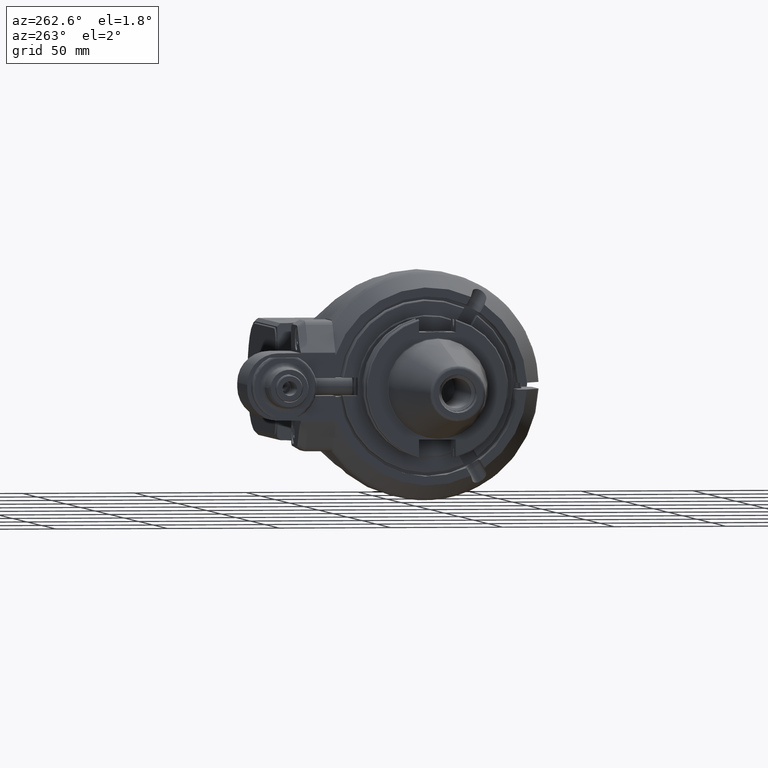
[diagram: clean part render]
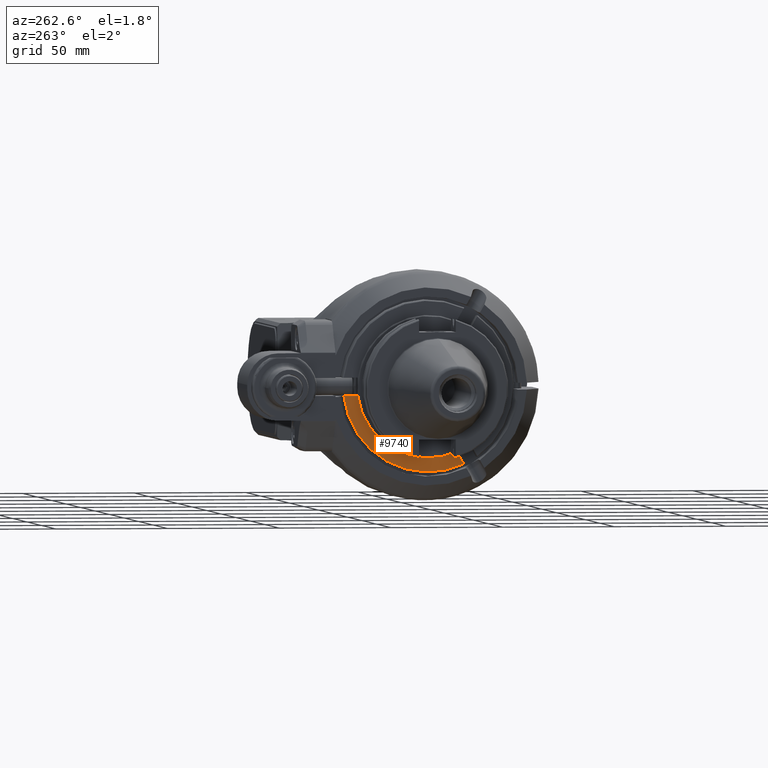
[diagram: same view with one face highlighted and labeled with its STEP entity id]
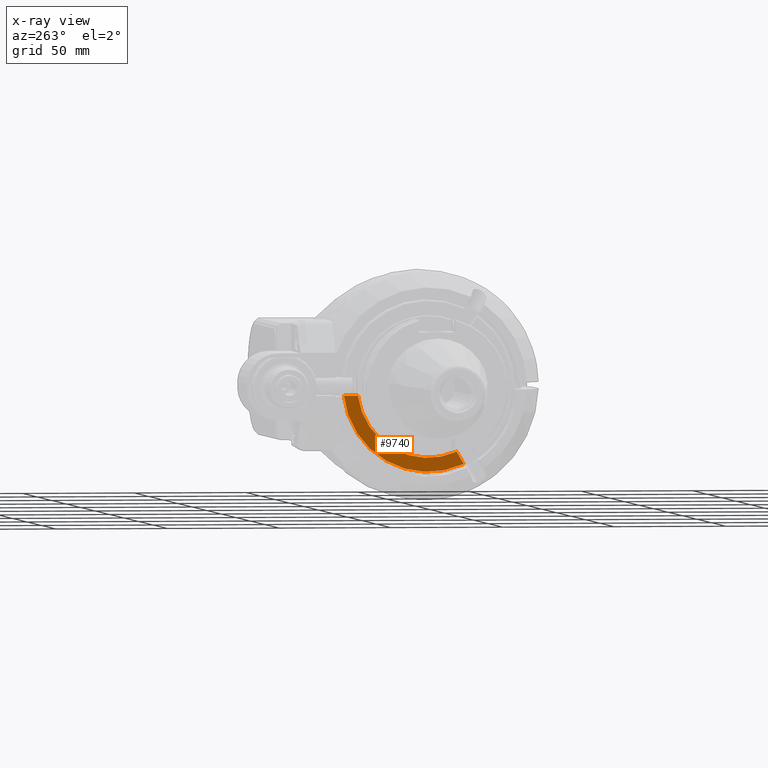
[diagram: x-ray of the same camera — body ghosted, the highlighted face saturated]
A machine part, auxiliary view. The second image highlights one B-rep face of the part: STEP entity #9740.
The next image is the same camera in x-ray: the body ghosted, the highlighted face saturated — about 0% of this face is hidden behind the body in this view.
In plain terms, the highlighted planar face has unit normal (-1, -0, 0).
Its self-contained STEP definition (entity closure, byte-faithful):
#876=CIRCLE('',#10944,31.75);
#878=CIRCLE('',#10947,38.);
#1161=PLANE('',#10946);
#1686=FACE_OUTER_BOUND('',#2356,.T.);
#2356=EDGE_LOOP('',(#8394,#8395,#8396,#8397));
#3116=LINE('',#46705,#3755);
#3117=LINE('',#46706,#3756);
#3755=VECTOR('',#13524,6.28197553115813);
#3756=VECTOR('',#13525,10.);
#4604=VERTEX_POINT('',#46678);
#4605=VERTEX_POINT('',#46679);
#4610=VERTEX_POINT('',#46702);
#4611=VERTEX_POINT('',#46703);
#5886=EDGE_CURVE('',#4604,#4605,#876,.T.);
#5893=EDGE_CURVE('',#4610,#4611,#878,.T.);
#5894=EDGE_CURVE('',#4611,#4604,#3116,.T.);
#5895=EDGE_CURVE('',#4605,#4610,#3117,.T.);
#8394=ORIENTED_EDGE('',*,*,#5893,.T.);
#8395=ORIENTED_EDGE('',*,*,#5894,.T.);
#8396=ORIENTED_EDGE('',*,*,#5886,.T.);
#8397=ORIENTED_EDGE('',*,*,#5895,.T.);
#9740=ADVANCED_FACE('',(#1686),#1161,.T.);
#10944=AXIS2_PLACEMENT_3D('',#46680,#13516,#13517);
#10946=AXIS2_PLACEMENT_3D('',#46701,#13520,#13521);
#10947=AXIS2_PLACEMENT_3D('',#46704,#13522,#13523);
#13516=DIRECTION('center_axis',(-1.,0.,0.));
#13517=DIRECTION('ref_axis',(0.,-0.915865449338698,-0.401485340588699));
#13520=DIRECTION('center_axis',(1.,0.,0.));
#13521=DIRECTION('ref_axis',(0.,-0.86926923622807,0.494338947431283));
#13522=DIRECTION('center_axis',(1.,0.,0.));
#13523=DIRECTION('ref_axis',(0.,-0.105263157894704,0.994444401457434));
#13524=DIRECTION('',(0.,0.866025403783983,0.50000000000079));
#13525=DIRECTION('',(0.,0.,1.));
#46678=CARTESIAN_POINT('',(7.,-29.0787280165,-12.74715956369));
#46679=CARTESIAN_POINT('',(6.99855439437882,-3.99951055704307,31.4985430348454));
#46680=CARTESIAN_POINT('Origin',(7.,0.,0.));
#46701=CARTESIAN_POINT('Origin',(7.,-30.95404959954,17.6030528403));
#46702=CARTESIAN_POINT('',(7.,-4.,37.78888725538));
#46703=CARTESIAN_POINT('',(7.,-34.51907841243,-15.88814732927));
#46704=CARTESIAN_POINT('Origin',(7.,0.,0.));
#46705=CARTESIAN_POINT('',(7.,-34.51907841244,-15.88814732928));
#46706=CARTESIAN_POINT('',(7.,-4.,32.05152642015));